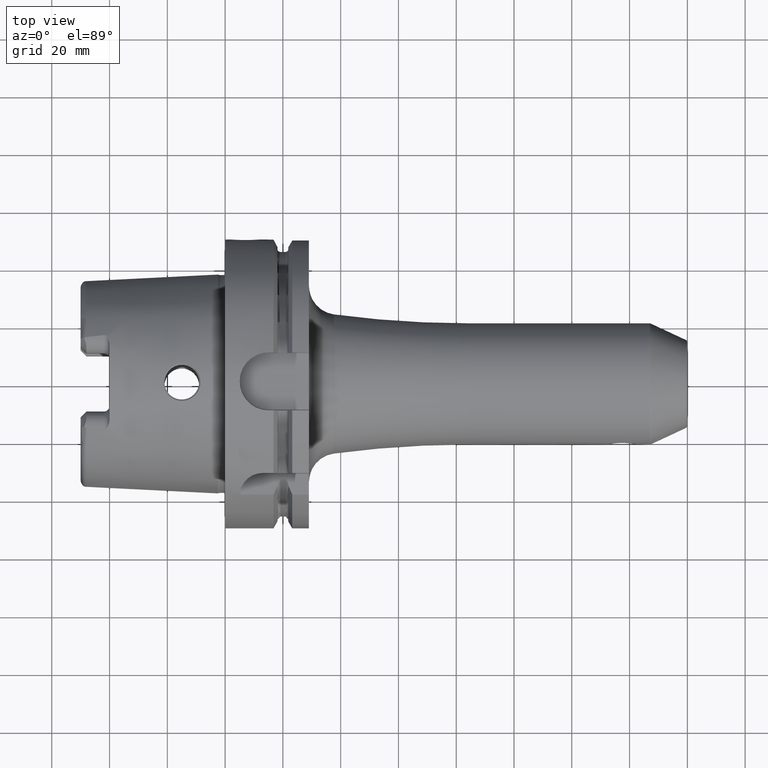
[diagram: clean part render]
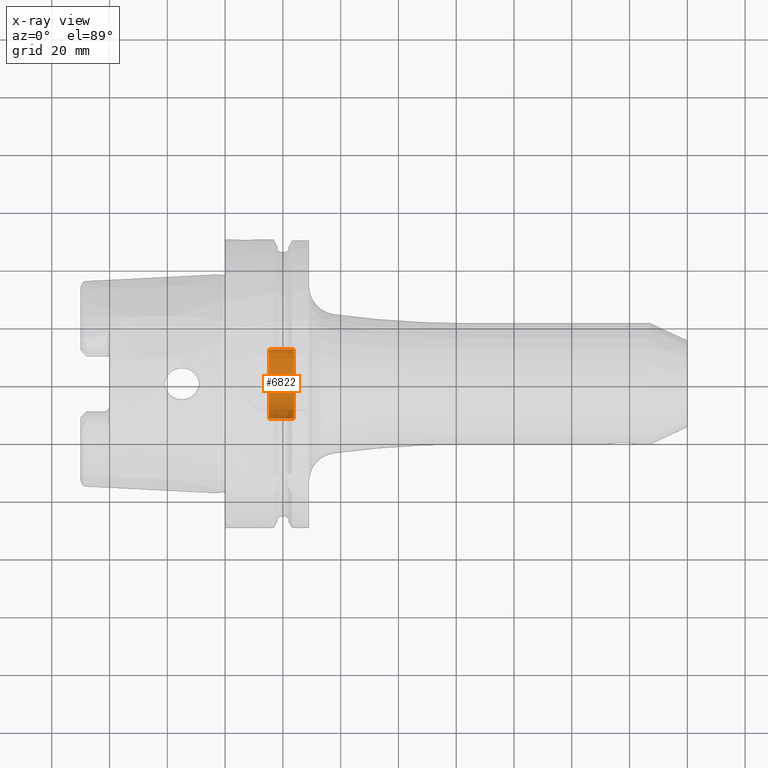
[diagram: x-ray — body ghosted, one internal face saturated and labeled with its STEP entity id]
A machine part, top view, then the same camera in x-ray: the body is ghosted and one INTERNAL B-rep face — a face not visible from any outside direction — is saturated and labeled: STEP entity #6822.
In plain terms, the highlighted cylindrical surface (edge-blend (fillet) strip) has radius 12 mm, axis along (1, 0, 0).
Its self-contained STEP definition (entity closure, byte-faithful):
#6735=CARTESIAN_POINT('',(1.51625E1,0.E0,0.E0));
#6736=DIRECTION('',(1.E0,0.E0,0.E0));
#6737=DIRECTION('',(0.E0,-1.E0,0.E0));
#6738=AXIS2_PLACEMENT_3D('',#6735,#6736,#6737);
#6740=CARTESIAN_POINT('',(2.385262794416E1,0.E0,0.E0));
#6741=DIRECTION('',(-1.E0,0.E0,0.E0));
#6742=DIRECTION('',(0.E0,1.E0,0.E0));
#6743=AXIS2_PLACEMENT_3D('',#6740,#6741,#6742);
#6760=DIRECTION('',(-1.E0,0.E0,0.E0));
#6761=VECTOR('',#6760,8.690127944163E0);
#6762=CARTESIAN_POINT('',(2.385262794416E1,-1.2E1,0.E0));
#6763=LINE('',#6762,#6761);
#6769=DIRECTION('',(-1.E0,0.E0,0.E0));
#6770=VECTOR('',#6769,8.690127944163E0);
#6771=CARTESIAN_POINT('',(2.385262794416E1,1.2E1,0.E0));
#6772=LINE('',#6771,#6770);
#6795=CARTESIAN_POINT('',(1.51625E1,-1.2E1,0.E0));
#6796=CARTESIAN_POINT('',(1.51625E1,1.2E1,0.E0));
#6797=VERTEX_POINT('',#6795);
#6798=VERTEX_POINT('',#6796);
#6799=CARTESIAN_POINT('',(2.385262794416E1,-1.2E1,0.E0));
#6800=CARTESIAN_POINT('',(2.385262794416E1,1.2E1,0.E0));
#6801=VERTEX_POINT('',#6799);
#6802=VERTEX_POINT('',#6800);
#6807=CARTESIAN_POINT('',(-4.847666062263E0,0.E0,0.E0));
#6808=DIRECTION('',(1.E0,0.E0,0.E0));
#6809=DIRECTION('',(0.E0,-1.E0,0.E0));
#6810=AXIS2_PLACEMENT_3D('',#6807,#6808,#6809);
#6811=CYLINDRICAL_SURFACE('',#6810,1.2E1);
#6813=ORIENTED_EDGE('',*,*,#6812,.T.);
#6815=ORIENTED_EDGE('',*,*,#6814,.F.);
#6817=ORIENTED_EDGE('',*,*,#6816,.T.);
#6819=ORIENTED_EDGE('',*,*,#6818,.T.);
#6820=EDGE_LOOP('',(#6813,#6815,#6817,#6819));
#6821=FACE_OUTER_BOUND('',#6820,.F.);
#6822=ADVANCED_FACE('',(#6821),#6811,.F.);
#6739=CIRCLE('',#6738,1.2E1);
#6744=CIRCLE('',#6743,1.2E1);
#6812=EDGE_CURVE('',#6797,#6798,#6739,.T.);
#6814=EDGE_CURVE('',#6802,#6798,#6772,.T.);
#6816=EDGE_CURVE('',#6802,#6801,#6744,.T.);
#6818=EDGE_CURVE('',#6801,#6797,#6763,.T.);